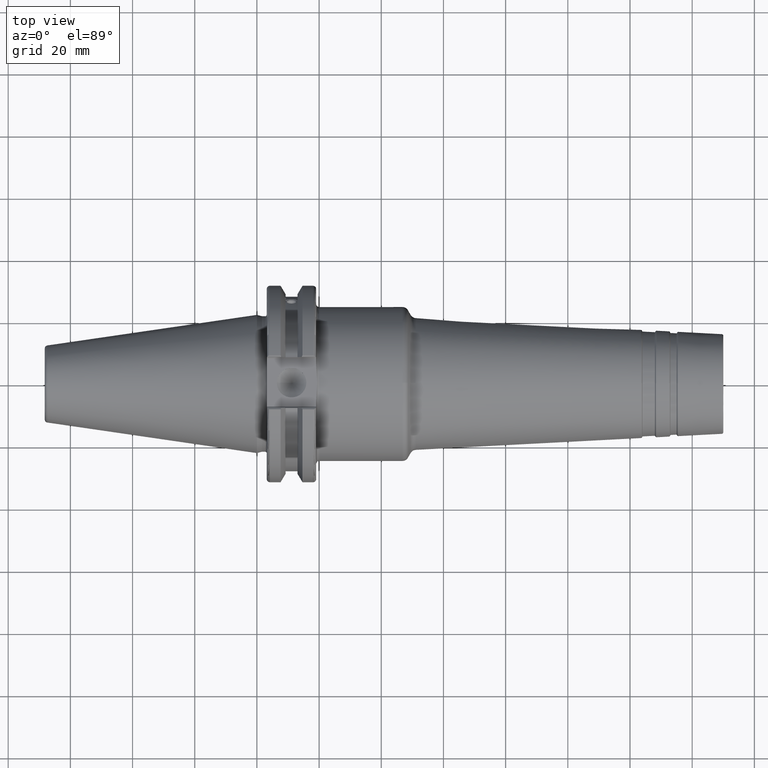
[diagram: clean part render]
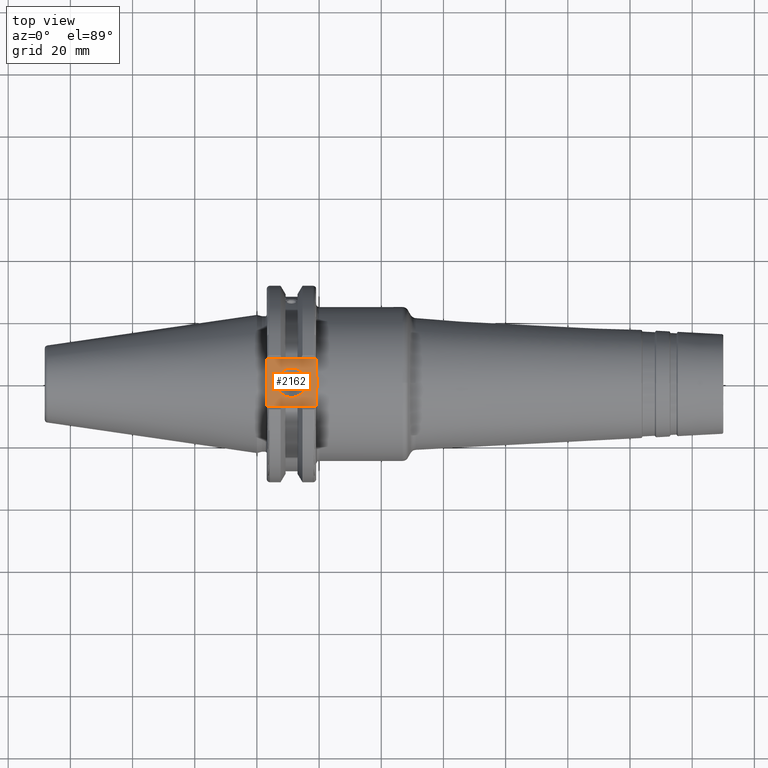
[diagram: same view with one face highlighted and labeled with its STEP entity id]
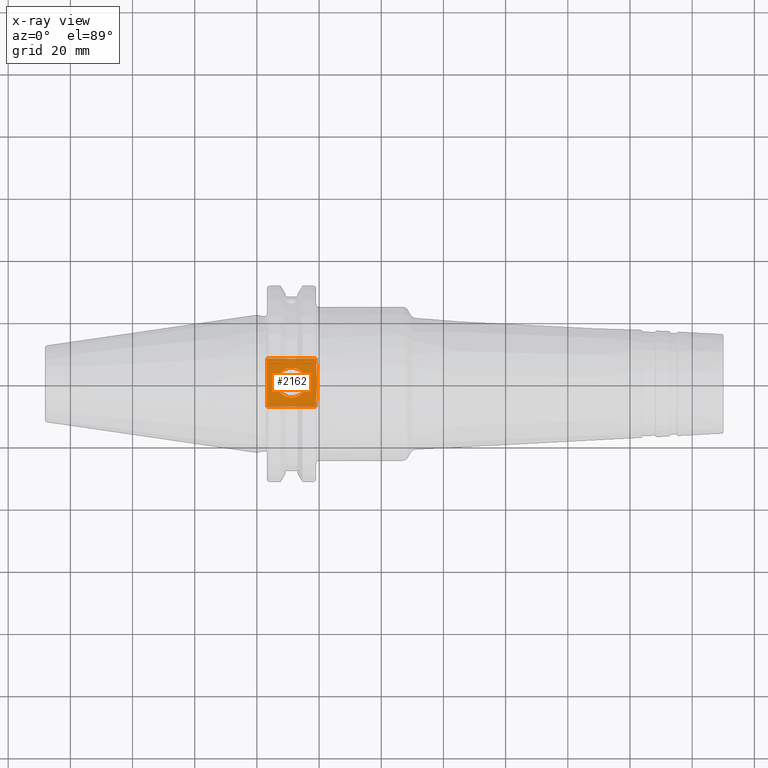
[diagram: x-ray of the same camera — body ghosted, the highlighted face saturated]
A machine part, top view. The second image highlights one B-rep face of the part: STEP entity #2162.
The next image is the same camera in x-ray: the body ghosted, the highlighted face saturated — about 0% of this face is hidden behind the body in this view.
In plain terms, the highlighted planar face has unit normal (0, 0, 1).
Its self-contained STEP definition (entity closure, byte-faithful):
#82=PLANE('',#2474);
#116=FACE_BOUND('',#401,.T.);
#123=B_SPLINE_CURVE_WITH_KNOTS('',3,(#3489,#3490,#3491,#3492,#3493,#3494,
#3495,#3496,#3497,#3498),.UNSPECIFIED.,.F.,.F.,(4,2,2,2,4),(1.28229186042809,
1.47392183654147,1.862003561099,2.25008528565653,2.44171526176991),
 .UNSPECIFIED.);
#281=FACE_OUTER_BOUND('',#400,.T.);
#400=EDGE_LOOP('',(#2000,#2001,#2002,#2003,#2004,#2005));
#401=EDGE_LOOP('',(#2006,#2007));
#425=LINE('',#3525,#524);
#432=LINE('',#3542,#531);
#468=LINE('',#3912,#567);
#491=LINE('',#4141,#590);
#493=LINE('',#4144,#592);
#524=VECTOR('',#2742,10.);
#531=VECTOR('',#2755,10.);
#567=VECTOR('',#2991,10.);
#590=VECTOR('',#3086,10.);
#592=VECTOR('',#3090,10.);
#768=CIRCLE('',#2461,4.7625);
#769=CIRCLE('',#2462,4.7625);
#863=VERTEX_POINT('',#3487);
#864=VERTEX_POINT('',#3488);
#867=VERTEX_POINT('',#3524);
#874=VERTEX_POINT('',#3540);
#965=VERTEX_POINT('',#3909);
#966=VERTEX_POINT('',#3911);
#1015=VERTEX_POINT('',#4182);
#1016=VERTEX_POINT('',#4183);
#1130=EDGE_CURVE('',#863,#864,#123,.F.);
#1135=EDGE_CURVE('',#863,#867,#425,.T.);
#1144=EDGE_CURVE('',#874,#864,#432,.T.);
#1264=EDGE_CURVE('',#965,#966,#468,.T.);
#1327=EDGE_CURVE('',#867,#965,#491,.T.);
#1329=EDGE_CURVE('',#966,#874,#493,.T.);
#1345=EDGE_CURVE('',#1015,#1016,#768,.T.);
#1346=EDGE_CURVE('',#1016,#1015,#769,.T.);
#2000=ORIENTED_EDGE('',*,*,#1327,.F.);
#2001=ORIENTED_EDGE('',*,*,#1135,.F.);
#2002=ORIENTED_EDGE('',*,*,#1130,.T.);
#2003=ORIENTED_EDGE('',*,*,#1144,.F.);
#2004=ORIENTED_EDGE('',*,*,#1329,.F.);
#2005=ORIENTED_EDGE('',*,*,#1264,.F.);
#2006=ORIENTED_EDGE('',*,*,#1345,.T.);
#2007=ORIENTED_EDGE('',*,*,#1346,.T.);
#2162=ADVANCED_FACE('',(#281,#116),#82,.T.);
#2461=AXIS2_PLACEMENT_3D('',#4184,#3127,#3128);
#2462=AXIS2_PLACEMENT_3D('',#4185,#3129,#3130);
#2474=AXIS2_PLACEMENT_3D('',#4198,#3154,#3155);
#2742=DIRECTION('',(0.,-1.,0.));
#2755=DIRECTION('',(0.,-1.,0.));
#2991=DIRECTION('',(0.,1.,0.));
#3086=DIRECTION('',(-1.,1.31581988103722E-16,0.));
#3090=DIRECTION('',(1.,0.,0.));
#3127=DIRECTION('center_axis',(0.,0.,-1.));
#3128=DIRECTION('ref_axis',(1.,0.,0.));
#3129=DIRECTION('center_axis',(0.,0.,-1.));
#3130=DIRECTION('ref_axis',(1.,0.,0.));
#3154=DIRECTION('center_axis',(0.,0.,1.));
#3155=DIRECTION('ref_axis',(1.,0.,0.));
#3487=CARTESIAN_POINT('',(19.05,-6.16948133962654,25.));
#3488=CARTESIAN_POINT('',(19.05,6.16948133962654,25.));
#3489=CARTESIAN_POINT('Ctrl Pts',(19.05,6.16948133962654,25.));
#3490=CARTESIAN_POINT('Ctrl Pts',(19.05,5.53071475258195,25.));
#3491=CARTESIAN_POINT('Ctrl Pts',(19.0917093675371,4.76533047486056,25.));
#3492=CARTESIAN_POINT('Ctrl Pts',(19.2334466867335,2.83816328553263,25.));
#3493=CARTESIAN_POINT('Ctrl Pts',(19.3885621722339,1.29360574852511,25.));
#3494=CARTESIAN_POINT('Ctrl Pts',(19.3885621722339,-1.29360574852511,25.));
#3495=CARTESIAN_POINT('Ctrl Pts',(19.2334466867335,-2.83816328553263,25.));
#3496=CARTESIAN_POINT('Ctrl Pts',(19.0917093675371,-4.76533047486056,25.));
#3497=CARTESIAN_POINT('Ctrl Pts',(19.05,-5.53071475258195,25.));
#3498=CARTESIAN_POINT('Ctrl Pts',(19.05,-6.16948133962654,25.));
#3524=CARTESIAN_POINT('',(19.05,-7.69,25.));
#3525=CARTESIAN_POINT('',(19.05,0.,25.));
#3540=CARTESIAN_POINT('',(19.05,7.69,25.));
#3542=CARTESIAN_POINT('',(19.05,0.,25.));
#3909=CARTESIAN_POINT('',(3.175,-7.68999999999999,25.));
#3911=CARTESIAN_POINT('',(3.175,7.69,25.));
#3912=CARTESIAN_POINT('',(3.175,15.875,25.));
#4141=CARTESIAN_POINT('',(9.44125,-7.69,25.));
#4144=CARTESIAN_POINT('',(17.87875,7.69,25.));
#4182=CARTESIAN_POINT('',(15.8966,0.,25.));
#4183=CARTESIAN_POINT('',(6.3716,-5.83238038093927E-16,25.));
#4184=CARTESIAN_POINT('Origin',(11.1341,0.,25.));
#4185=CARTESIAN_POINT('Origin',(11.1341,0.,25.));
#4198=CARTESIAN_POINT('Origin',(15.7075,0.,25.));